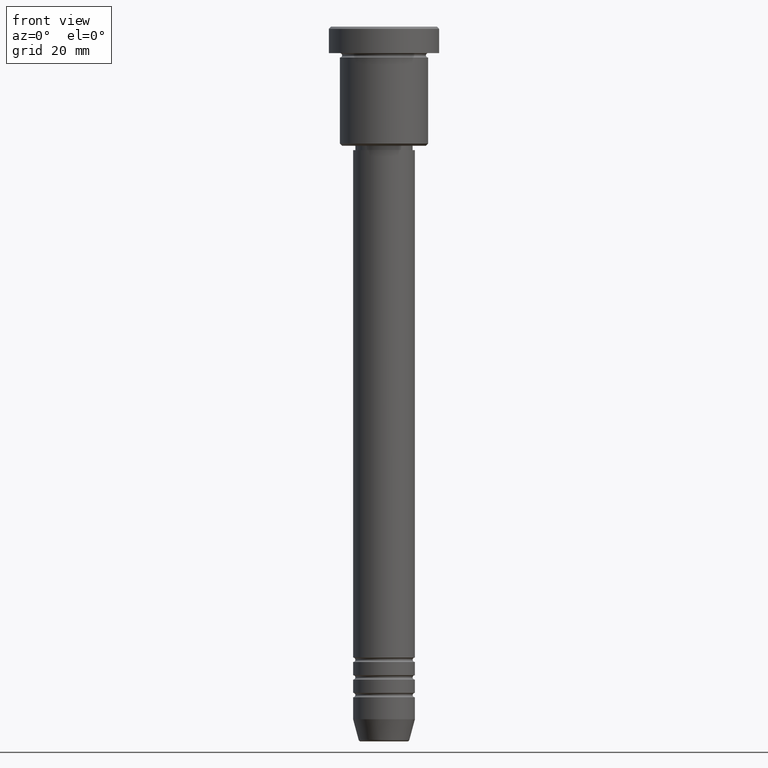
[diagram: clean part render]
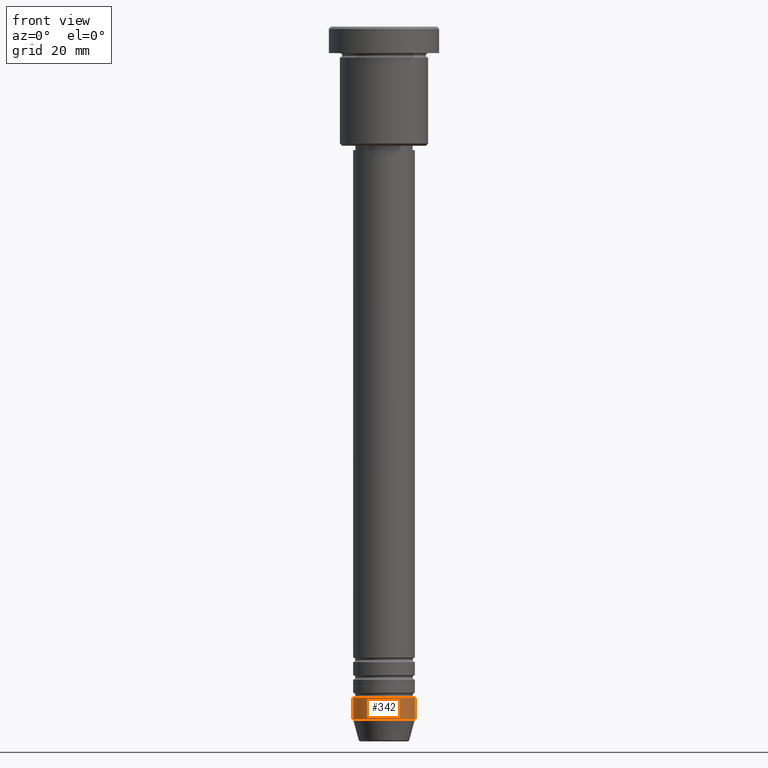
[diagram: same view with one face highlighted and labeled with its STEP entity id]
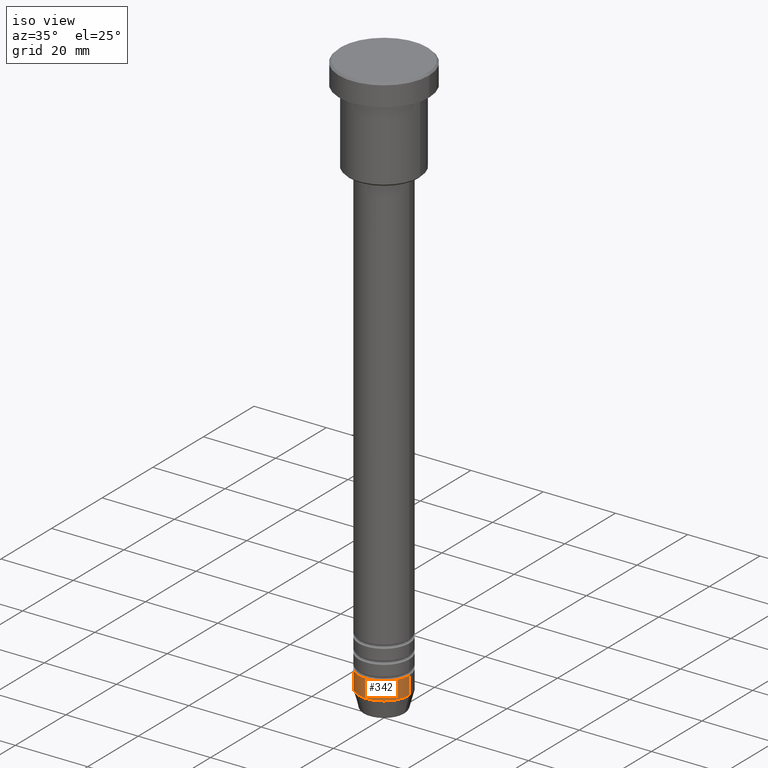
[diagram: same view with one face highlighted and labeled with its STEP entity id]
A machine part, front view. The second image highlights one B-rep face of the part: STEP entity #342.
A second angle (iso view) of the same face is appended — the face is thin or edge-on in the first view.
In plain terms, the highlighted cylindrical surface (edge-blend (fillet) strip) has radius 7 mm, axis along (-0, -0, 1).
Its self-contained STEP definition (entity closure, byte-faithful):
#102 = AXIS2_PLACEMENT_3D ( 'NONE', #422, #715, #316 ) ;
#151 = VERTEX_POINT ( 'NONE', #686 ) ;
#153 = CARTESIAN_POINT ( 'NONE',  ( 0.000000000000000000, 0.000000000000000000, -157.0000000000000284 ) ) ;
#223 = ORIENTED_EDGE ( 'NONE', *, *, #1124, .T. ) ;
#232 = VECTOR ( 'NONE', #1092, 1000.000000000000000 ) ;
#260 = CARTESIAN_POINT ( 'NONE',  ( 0.000000000000000000, 0.000000000000000000, 0.000000000000000000 ) ) ;
#265 = VECTOR ( 'NONE', #877, 1000.000000000000000 ) ;
#268 = LINE ( 'NONE', #279, #232 ) ;
#279 = CARTESIAN_POINT ( 'NONE',  ( 7.000000000000000000, 0.000000000000000000, 0.000000000000000000 ) ) ;
#293 = CARTESIAN_POINT ( 'NONE',  ( -7.000000000000000000, 8.572527594031473190E-16, -157.0000000000000284 ) ) ;
#316 = DIRECTION ( 'NONE',  ( 1.000000000000000000, 0.000000000000000000, 0.000000000000000000 ) ) ;
#339 = CIRCLE ( 'NONE', #730, 7.000000000000000000 ) ;
#342 = ADVANCED_FACE ( 'NONE', ( #530 ), #718, .T. ) ;
#422 = CARTESIAN_POINT ( 'NONE',  ( 0.000000000000000000, 0.000000000000000000, -152.0000000000000284 ) ) ;
#441 = EDGE_LOOP ( 'NONE', ( #1108, #223, #707, #799 ) ) ;
#449 = DIRECTION ( 'NONE',  ( 1.000000000000000000, 0.000000000000000000, 0.000000000000000000 ) ) ;
#450 = AXIS2_PLACEMENT_3D ( 'NONE', #260, #984, #449 ) ;
#481 = CARTESIAN_POINT ( 'NONE',  ( 7.000000000000000000, 0.000000000000000000, -152.0000000000000284 ) ) ;
#530 = FACE_OUTER_BOUND ( 'NONE', #441, .T. ) ;
#595 = CARTESIAN_POINT ( 'NONE',  ( -7.000000000000000000, 8.572527594031473190E-16, 0.000000000000000000 ) ) ;
#683 = EDGE_CURVE ( 'NONE', #886, #855, #1148, .T. ) ;
#686 = CARTESIAN_POINT ( 'NONE',  ( 7.000000000000000000, 0.000000000000000000, -157.0000000000000284 ) ) ;
#707 = ORIENTED_EDGE ( 'NONE', *, *, #853, .T. ) ;
#715 = DIRECTION ( 'NONE',  ( -0.000000000000000000, -0.000000000000000000, 1.000000000000000000 ) ) ;
#718 = CYLINDRICAL_SURFACE ( 'NONE', #450, 7.000000000000000000 ) ;
#730 = AXIS2_PLACEMENT_3D ( 'NONE', #153, #981, #1160 ) ;
#799 = ORIENTED_EDGE ( 'NONE', *, *, #1081, .F. ) ;
#853 = EDGE_CURVE ( 'NONE', #151, #959, #268, .T. ) ;
#855 = VERTEX_POINT ( 'NONE', #1023 ) ;
#877 = DIRECTION ( 'NONE',  ( -0.000000000000000000, -0.000000000000000000, 1.000000000000000000 ) ) ;
#886 = VERTEX_POINT ( 'NONE', #293 ) ;
#959 = VERTEX_POINT ( 'NONE', #481 ) ;
#981 = DIRECTION ( 'NONE',  ( -0.000000000000000000, -0.000000000000000000, 1.000000000000000000 ) ) ;
#984 = DIRECTION ( 'NONE',  ( -0.000000000000000000, -0.000000000000000000, 1.000000000000000000 ) ) ;
#1023 = CARTESIAN_POINT ( 'NONE',  ( -7.000000000000000000, 8.572527594031473190E-16, -152.0000000000000284 ) ) ;
#1081 = EDGE_CURVE ( 'NONE', #855, #959, #1121, .T. ) ;
#1092 = DIRECTION ( 'NONE',  ( -0.000000000000000000, -0.000000000000000000, 1.000000000000000000 ) ) ;
#1108 = ORIENTED_EDGE ( 'NONE', *, *, #683, .F. ) ;
#1121 = CIRCLE ( 'NONE', #102, 7.000000000000000000 ) ;
#1124 = EDGE_CURVE ( 'NONE', #886, #151, #339, .T. ) ;
#1148 = LINE ( 'NONE', #595, #265 ) ;
#1160 = DIRECTION ( 'NONE',  ( 1.000000000000000000, 0.000000000000000000, 0.000000000000000000 ) ) ;